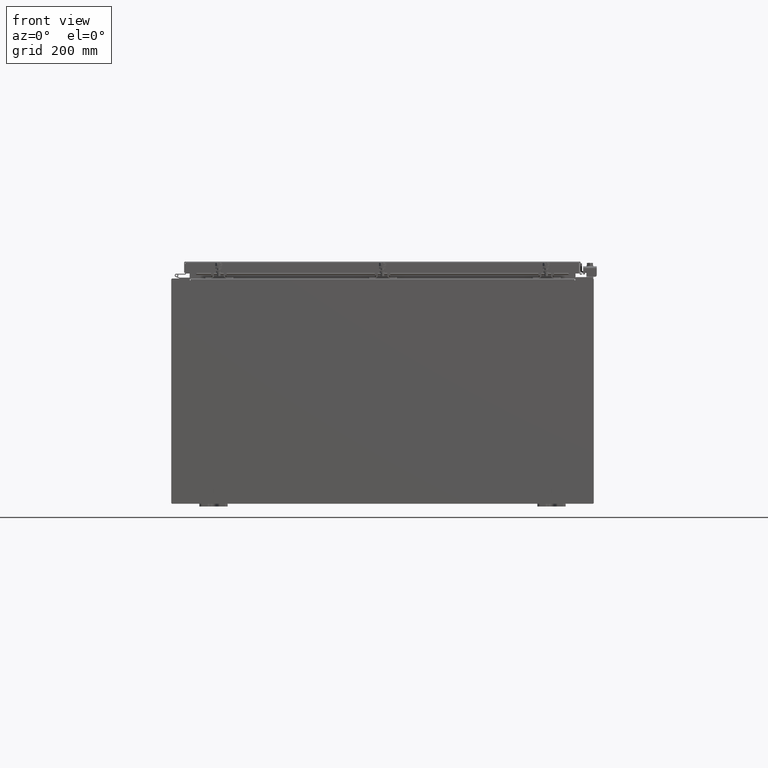
[diagram: clean part render]
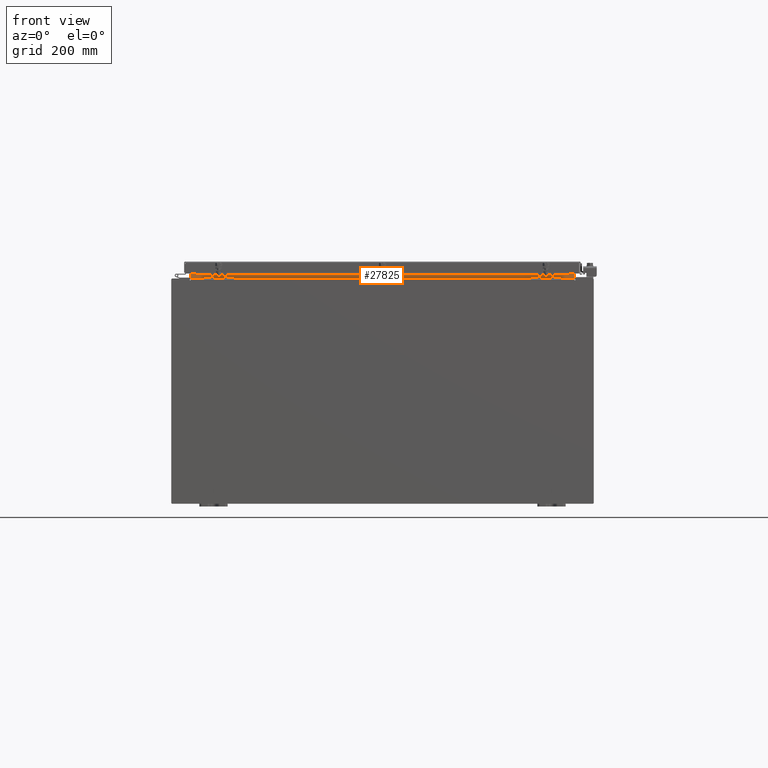
[diagram: same view with one face highlighted and labeled with its STEP entity id]
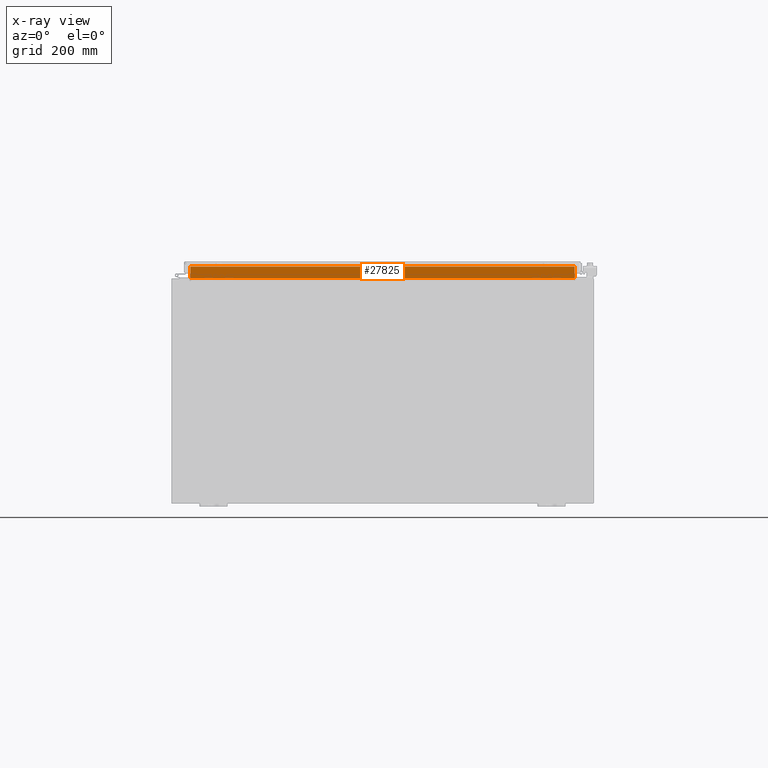
[diagram: x-ray of the same camera — body ghosted, the highlighted face saturated]
A machine part, front view. The second image highlights one B-rep face of the part: STEP entity #27825.
The next image is the same camera in x-ray: the body ghosted, the highlighted face saturated — about 0% of this face is hidden behind the body in this view.
In plain terms, the highlighted planar face has unit normal (-0, -1, 0).
Its self-contained STEP definition (entity closure, byte-faithful):
#1747 = LINE ( 'NONE', #39577, #36603 ) ;
#1771 = VERTEX_POINT ( 'NONE', #40142 ) ;
#2055 = CARTESIAN_POINT ( 'NONE',  ( -13.63719999999998800, -1.300300000000001300, 8.012999999999994600 ) ) ;
#2346 = CARTESIAN_POINT ( 'NONE',  ( -3.495496509759975400E-016, -1.300299999999999300, 0.0000000000000000000 ) ) ;
#4956 = VECTOR ( 'NONE', #13105, 39.37007874015748100 ) ;
#5086 = VECTOR ( 'NONE', #5464, 39.37007874015748100 ) ;
#5464 = DIRECTION ( 'NONE',  ( 1.000000000000000000, 2.688223102148527500E-016, 7.124733286426158300E-016 ) ) ;
#6131 = LINE ( 'NONE', #2055, #5086 ) ;
#7729 = DIRECTION ( 'NONE',  ( -1.000000000000000000, -2.688223102148527500E-016, -8.326672684688674100E-016 ) ) ;
#9135 = PLANE ( 'NONE',  #17477 ) ;
#9550 = EDGE_CURVE ( 'NONE', #25723, #1771, #13938, .T. ) ;
#12975 = FACE_OUTER_BOUND ( 'NONE', #31860, .T. ) ;
#13105 = DIRECTION ( 'NONE',  ( -8.326672684688674100E-016, 1.677591767810434500E-016, -1.000000000000000000 ) ) ;
#13938 = LINE ( 'NONE', #36736, #4956 ) ;
#15288 = ORIENTED_EDGE ( 'NONE', *, *, #33117, .F. ) ;
#15981 = DIRECTION ( 'NONE',  ( 8.326672684688674100E-016, -1.677591767810434500E-016, 1.000000000000000000 ) ) ;
#17477 = AXIS2_PLACEMENT_3D ( 'NONE', #2346, #19337, #42929 ) ;
#19337 = DIRECTION ( 'NONE',  ( 2.688223102148531000E-016, 1.000000000000000000, 1.677591767810432300E-016 ) ) ;
#22854 = VERTEX_POINT ( 'NONE', #32362 ) ;
#24741 = CARTESIAN_POINT ( 'NONE',  ( 13.63720000000001400, -1.300299999999999300, 8.837600000000012600 ) ) ;
#25723 = VERTEX_POINT ( 'NONE', #38684 ) ;
#27131 = ORIENTED_EDGE ( 'NONE', *, *, #32259, .F. ) ;
#27441 = CARTESIAN_POINT ( 'NONE',  ( 13.63720000000001200, -1.300299999999999300, 8.013000000000014100 ) ) ;
#27825 = ADVANCED_FACE ( 'NONE', ( #12975 ), #9135, .T. ) ;
#31419 = LINE ( 'NONE', #24741, #39343 ) ;
#31860 = EDGE_LOOP ( 'NONE', ( #43583, #27131, #35429, #15288 ) ) ;
#32259 = EDGE_CURVE ( 'NONE', #22854, #25723, #31419, .T. ) ;
#32362 = CARTESIAN_POINT ( 'NONE',  ( 13.63720000000001400, -1.300299999999999300, 8.837600000000012600 ) ) ;
#33117 = EDGE_CURVE ( 'NONE', #1771, #35242, #6131, .T. ) ;
#35030 = EDGE_CURVE ( 'NONE', #35242, #22854, #1747, .T. ) ;
#35242 = VERTEX_POINT ( 'NONE', #27441 ) ;
#35429 = ORIENTED_EDGE ( 'NONE', *, *, #35030, .F. ) ;
#36603 = VECTOR ( 'NONE', #15981, 39.37007874015748100 ) ;
#36736 = CARTESIAN_POINT ( 'NONE',  ( -13.63719999999998800, -1.300300000000001300, 7.999999999999992000 ) ) ;
#38684 = CARTESIAN_POINT ( 'NONE',  ( -13.63719999999998800, -1.300299999999999300, 8.837599999999991200 ) ) ;
#39343 = VECTOR ( 'NONE', #7729, 39.37007874015748100 ) ;
#39577 = CARTESIAN_POINT ( 'NONE',  ( 13.63720000000001400, -1.300299999999999300, 8.925300000000012400 ) ) ;
#40142 = CARTESIAN_POINT ( 'NONE',  ( -13.63719999999998800, -1.300300000000001300, 8.012999999999992800 ) ) ;
#42929 = DIRECTION ( 'NONE',  ( 8.326672684688674100E-016, -1.677591767810434500E-016, 1.000000000000000000 ) ) ;
#43583 = ORIENTED_EDGE ( 'NONE', *, *, #9550, .F. ) ;